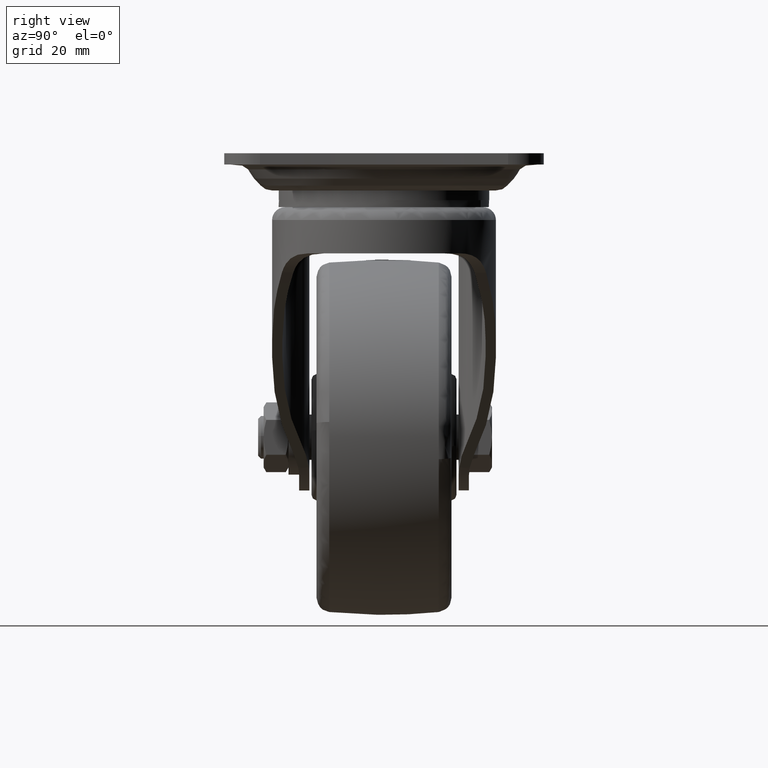
[diagram: clean part render]
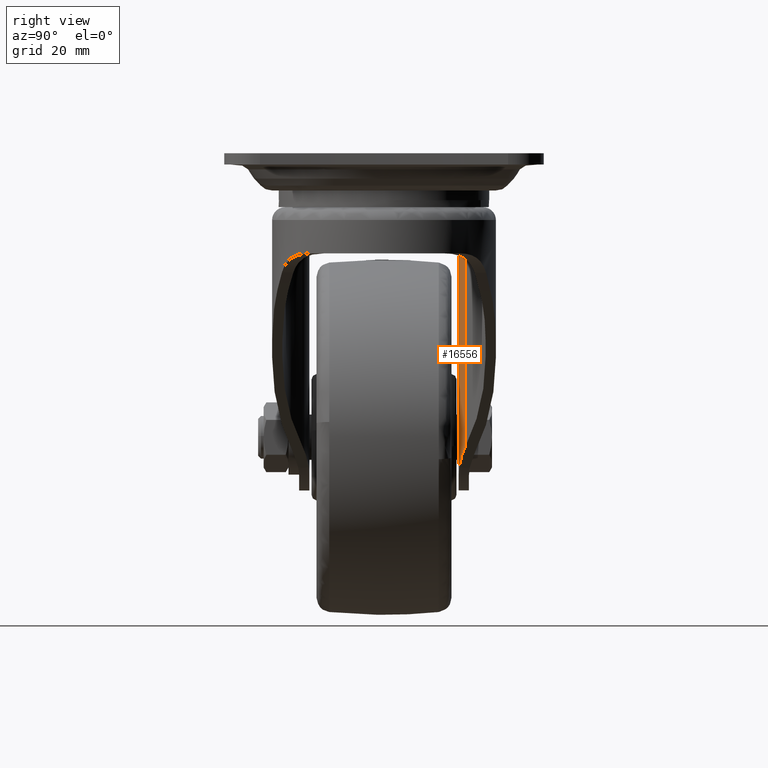
[diagram: same view with one face highlighted and labeled with its STEP entity id]
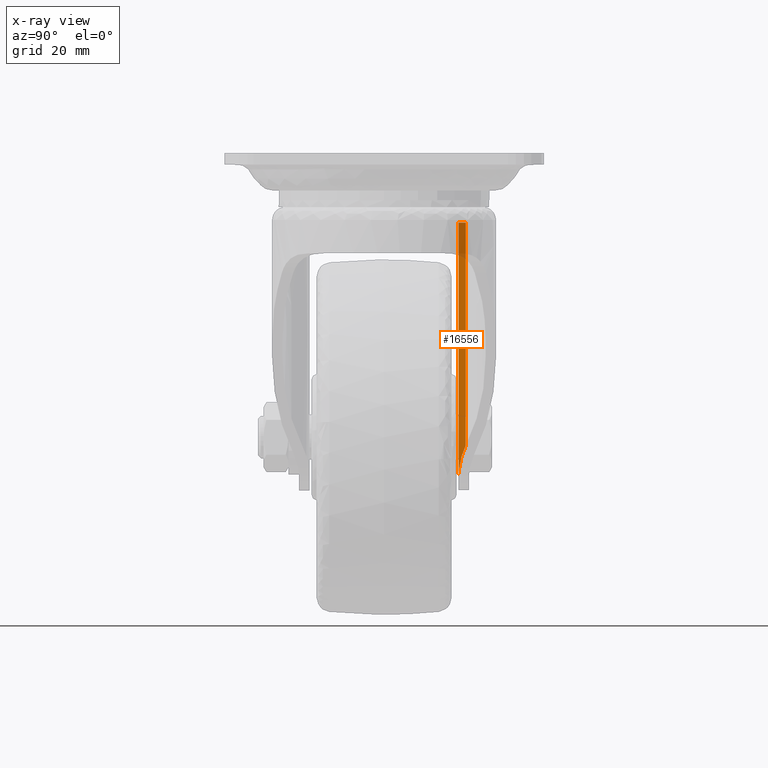
[diagram: x-ray of the same camera — body ghosted, the highlighted face saturated]
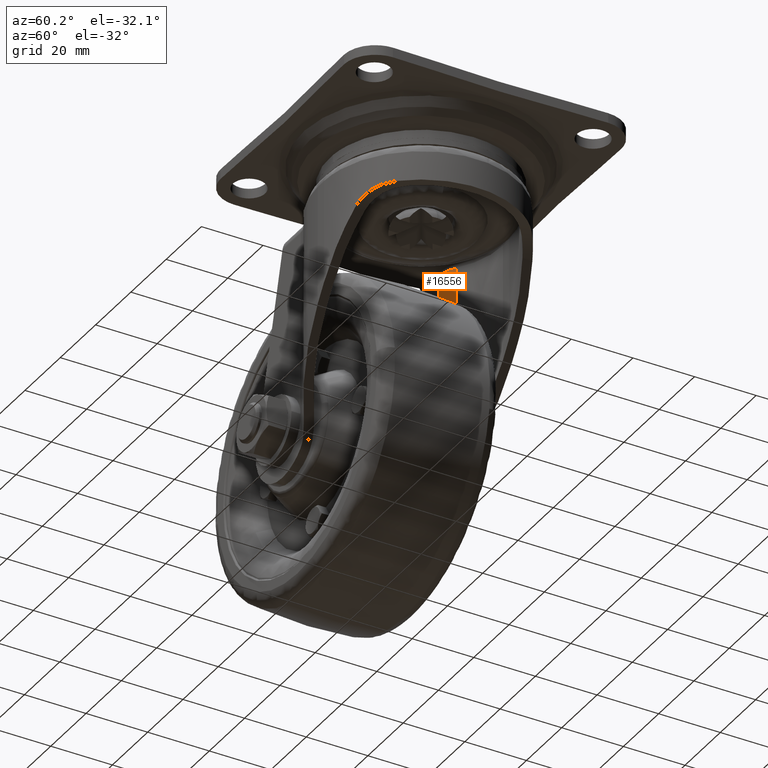
[diagram: same view with one face highlighted and labeled with its STEP entity id]
A machine part, right view. The second image highlights one B-rep face of the part: STEP entity #16556.
The next image is the same camera in x-ray: the body ghosted, the highlighted face saturated — about 15% of this face is hidden behind the body in this view.
A second angle (auxiliary view) of the same face is appended — the face is thin or edge-on in the first view.
In plain terms, the highlighted face is a freeform B-spline surface patch.
Its self-contained STEP definition (entity closure, byte-faithful):
#15402=CARTESIAN_POINT('',(-20.443423980010898,23.026666666666699,-19.599965000000051));
#15403=VERTEX_POINT('',#15402);
#15417=CARTESIAN_POINT('',(-20.443423980010952,23.026666666666650,-82.360775817826905));
#15418=VERTEX_POINT('',#15417);
#15419=CARTESIAN_POINT('',(-20.443423980010898,23.026666666666699,-19.599965000000051));
#15420=CARTESIAN_POINT('',(-20.443423980010952,23.026666666666650,-82.360775817826905));
#15421=QUASI_UNIFORM_CURVE('',1,(#15419,#15420),.UNSPECIFIED.,.F.,.U.);
#15422=EDGE_CURVE('',#15403,#15418,#15421,.T.);
#15573=CARTESIAN_POINT('',(-24.615982290442101,21.193275702574098,-88.463812953027400));
#15574=VERTEX_POINT('',#15573);
#15575=CARTESIAN_POINT('',(-20.443423980010898,23.026666666666671,-82.360775817826934));
#15576=CARTESIAN_POINT('',(-22.323839115439206,21.641451570743488,-85.111185170387017));
#15577=CARTESIAN_POINT('',(-24.615982290442020,21.193275702574098,-88.463812953027443));
#15585=(BOUNDED_CURVE()B_SPLINE_CURVE(2,(#15575,#15576,#15577),.UNSPECIFIED.,.F.,.U.)CURVE()GEOMETRIC_REPRESENTATION_ITEM()QUASI_UNIFORM_CURVE()RATIONAL_B_SPLINE_CURVE((1.0,0.975699134294484,1.0))REPRESENTATION_ITEM(''));
#15586=EDGE_CURVE('',#15418,#15574,#15585,.T.);
#16282=CARTESIAN_POINT('',(-26.611672425792651,21.0,-19.599965000000001));
#16283=VERTEX_POINT('',#16282);
#16297=CARTESIAN_POINT('',(-20.443423980010891,23.026666666666681,-19.599965000000051));
#16298=CARTESIAN_POINT('',(-23.194602974294231,20.999999999999993,-19.599965000000054));
#16299=CARTESIAN_POINT('',(-26.611672425792651,21.0,-19.599965000000051));
#16307=(BOUNDED_CURVE()B_SPLINE_CURVE(2,(#16297,#16298,#16299),.UNSPECIFIED.,.F.,.U.)CURVE()GEOMETRIC_REPRESENTATION_ITEM()QUASI_UNIFORM_CURVE()RATIONAL_B_SPLINE_CURVE((1.0,0.950033737592567,1.0))REPRESENTATION_ITEM(''));
#16308=EDGE_CURVE('',#15403,#16283,#16307,.T.);
#16521=CARTESIAN_POINT('',(-20.186242069457187,23.222357018316174,-92.600277095811805));
#16522=CARTESIAN_POINT('',(-20.186242069457187,23.222357018316174,-17.774957197604692));
#16523=CARTESIAN_POINT('',(-23.157937519625722,20.887402778070641,-92.600277095811819));
#16524=CARTESIAN_POINT('',(-23.157937519625722,20.887402778070641,-17.774957197604699));
#16525=CARTESIAN_POINT('',(-26.935389940261729,21.005039347317091,-92.600277095811805));
#16526=CARTESIAN_POINT('',(-26.935389940261729,21.005039347317091,-17.774957197604692));
#16534=(BOUNDED_SURFACE()B_SPLINE_SURFACE(1,2,((#16521,#16523,#16525),(#16522,#16524,#16526)),.UNSPECIFIED.,.F.,.F.,.U.)B_SPLINE_SURFACE_WITH_KNOTS((2,2),(3,3),(0.0,74.825319898207127),(0.0,7.324261133759711),.UNSPECIFIED.)GEOMETRIC_REPRESENTATION_ITEM()RATIONAL_B_SPLINE_SURFACE(((0.997715841447053,0.936828186936754,0.995818662240844),(0.997715841447053,0.936828186936754,0.995818662240844)))REPRESENTATION_ITEM('')SURFACE());
#16535=ORIENTED_EDGE('',*,*,#15422,.F.);
#16536=ORIENTED_EDGE('',*,*,#16308,.T.);
#16537=CARTESIAN_POINT('',(-26.611672425792651,21.0,-90.819781678840798));
#16538=VERTEX_POINT('',#16537);
#16539=CARTESIAN_POINT('',(-26.611672425792651,21.0,-90.819781678840798));
#16540=CARTESIAN_POINT('',(-26.611672425792651,21.0,-19.599965000000001));
#16541=QUASI_UNIFORM_CURVE('',1,(#16539,#16540),.UNSPECIFIED.,.F.,.U.);
#16542=EDGE_CURVE('',#16538,#16283,#16541,.T.);
#16543=ORIENTED_EDGE('',*,*,#16542,.F.);
#16544=CARTESIAN_POINT('',(-24.615982290442101,21.193275702574049,-88.463812953027400));
#16545=CARTESIAN_POINT('',(-24.907091172684581,21.136356057477851,-88.889606479811945));
#16546=CARTESIAN_POINT('',(-25.218859148210079,21.088270333506060,-89.298624840642304));
#16547=CARTESIAN_POINT('',(-25.883799568891810,21.020120489849180,-90.083887529481714));
#16548=CARTESIAN_POINT('',(-26.236966146482310,21.0,-90.460132203361212));
#16549=CARTESIAN_POINT('',(-26.611672425792651,21.0,-90.819781678840798));
#16550=B_SPLINE_CURVE_WITH_KNOTS('',3,(#16544,#16545,#16546,#16547,#16548,#16549),.UNSPECIFIED.,.F.,.U.,(4,2,4),(0.0,0.500000000000000,1.0),.UNSPECIFIED.);
#16551=EDGE_CURVE('',#15574,#16538,#16550,.T.);
#16552=ORIENTED_EDGE('',*,*,#16551,.F.);
#16553=ORIENTED_EDGE('',*,*,#15586,.F.);
#16554=EDGE_LOOP('',(#16535,#16536,#16543,#16552,#16553));
#16555=FACE_OUTER_BOUND('',#16554,.T.);
#16556=ADVANCED_FACE('',(#16555),#16534,.T.);